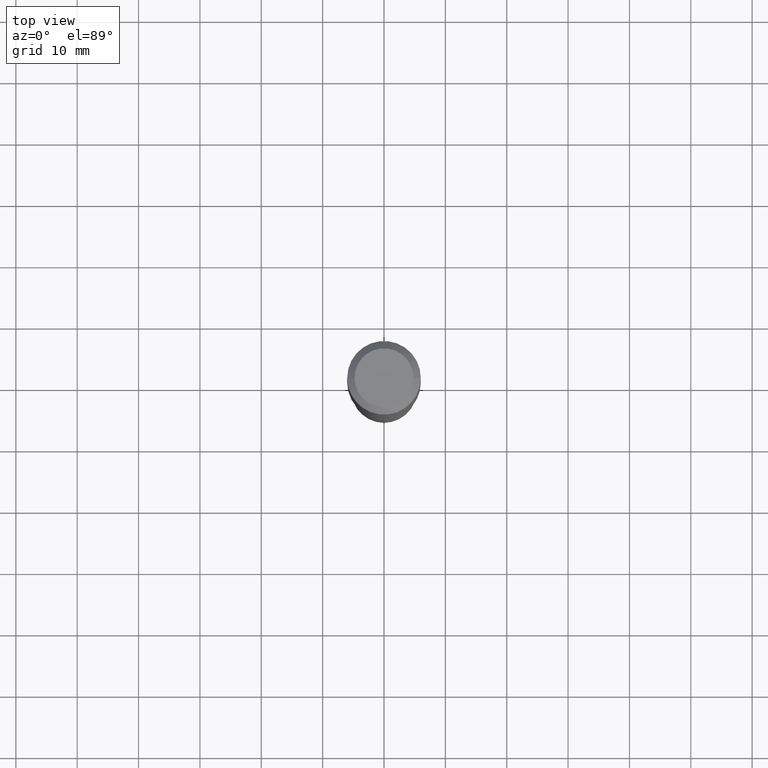
[diagram: clean part render]
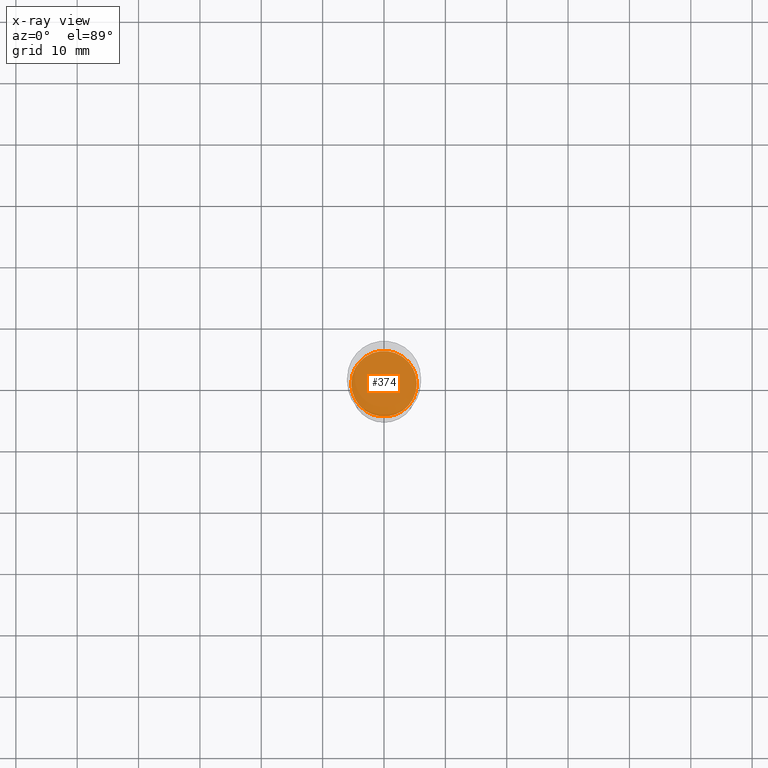
[diagram: x-ray — body ghosted, one internal face saturated and labeled with its STEP entity id]
A machine part, top view, then the same camera in x-ray: the body is ghosted and one INTERNAL B-rep face — a face not visible from any outside direction — is saturated and labeled: STEP entity #374.
In plain terms, the highlighted planar face has unit normal (-0, 0, 1).
Its self-contained STEP definition (entity closure, byte-faithful):
#39 = CARTESIAN_POINT ( 'NONE',  ( 5.555371487010773044E-29, -7.931598157449970914E-15, -2.271699999999999608 ) ) ;
#48 = AXIS2_PLACEMENT_3D ( 'NONE', #447, #483, #215 ) ;
#62 = PLANE ( 'NONE',  #176 ) ;
#67 = DIRECTION ( 'NONE',  ( -2.438088387897960049E-29, 3.491481338843145188E-15, 1.000000000000000000 ) ) ;
#170 = CIRCLE ( 'NONE', #48, 0.2101500000000000035 ) ;
#176 = AXIS2_PLACEMENT_3D ( 'NONE', #39, #67, #371 ) ;
#211 = FACE_OUTER_BOUND ( 'NONE', #317, .T. ) ;
#215 = DIRECTION ( 'NONE',  ( 1.000000000000000000, -6.982962677686263555E-15, 0.000000000000000000 ) ) ;
#217 = CIRCLE ( 'NONE', #368, 0.2101500000000000035 ) ;
#256 = VERTEX_POINT ( 'NONE', #397 ) ;
#269 = CARTESIAN_POINT ( 'NONE',  ( 5.555371487010773044E-29, -7.931598157449970914E-15, -2.271699999999999608 ) ) ;
#275 = ORIENTED_EDGE ( 'NONE', *, *, #472, .F. ) ;
#282 = VERTEX_POINT ( 'NONE', #471 ) ;
#303 = ORIENTED_EDGE ( 'NONE', *, *, #426, .F. ) ;
#317 = EDGE_LOOP ( 'NONE', ( #275, #303 ) ) ;
#368 = AXIS2_PLACEMENT_3D ( 'NONE', #269, #429, #423 ) ;
#371 = DIRECTION ( 'NONE',  ( 1.000000000000000000, -6.982962677686265922E-15, 4.876176775795935793E-29 ) ) ;
#374 = ADVANCED_FACE ( 'NONE', ( #211 ), #62, .F. ) ;
#397 = CARTESIAN_POINT ( 'NONE',  ( 0.2101500000000000035, -9.399067764165739668E-15, -2.271699999999999608 ) ) ;
#423 = DIRECTION ( 'NONE',  ( 1.000000000000000000, -6.982962677686263555E-15, 0.000000000000000000 ) ) ;
#426 = EDGE_CURVE ( 'NONE', #282, #256, #170, .T. ) ;
#429 = DIRECTION ( 'NONE',  ( -2.445468806185136597E-29, 3.491481338843145583E-15, 1.000000000000000000 ) ) ;
#447 = CARTESIAN_POINT ( 'NONE',  ( 5.555371487010773044E-29, -7.931598157449970914E-15, -2.271699999999999608 ) ) ;
#471 = CARTESIAN_POINT ( 'NONE',  ( -0.2101500000000000035, -6.435743371076010331E-15, -2.271699999999999608 ) ) ;
#472 = EDGE_CURVE ( 'NONE', #256, #282, #217, .T. ) ;
#483 = DIRECTION ( 'NONE',  ( -2.445468806185136597E-29, 3.491481338843145583E-15, 1.000000000000000000 ) ) ;